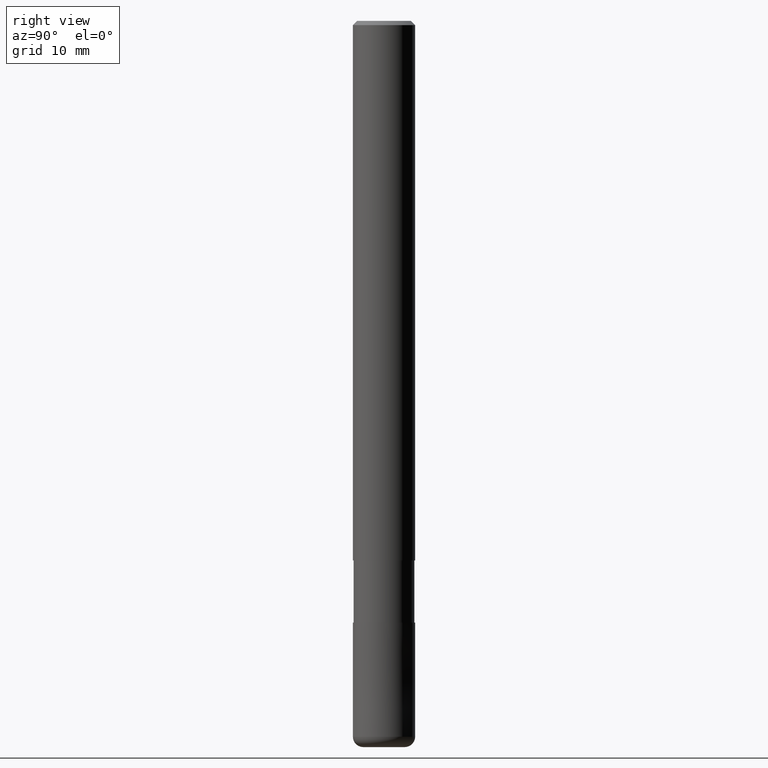
[diagram: clean part render]
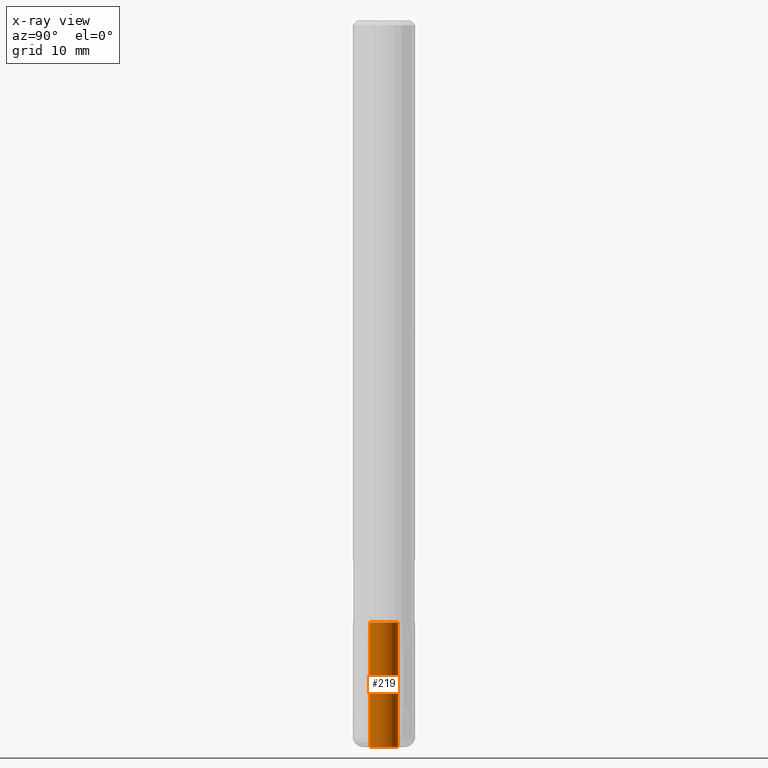
[diagram: x-ray — body ghosted, one internal face saturated and labeled with its STEP entity id]
A machine part, right view, then the same camera in x-ray: the body is ghosted and one INTERNAL B-rep face — a face not visible from any outside direction — is saturated and labeled: STEP entity #219.
In plain terms, the highlighted cylindrical surface (edge-blend (fillet) strip) has radius 1.35 mm, axis along (-0, -0, 1).
Its self-contained STEP definition (entity closure, byte-faithful):
#139=EDGE_CURVE('',#281,#269,#330,.T.);
#183=VERTEX_POINT('',#383);
#185=EDGE_CURVE('',#239,#183,#385,.T.);
#219=ADVANCED_FACE('',(#423),#424,.F.);
#221=EDGE_CURVE('',#269,#239,#426,.T.);
#239=VERTEX_POINT('',#446);
#245=EDGE_CURVE('',#281,#183,#452,.T.);
#269=VERTEX_POINT('',#479);
#281=VERTEX_POINT('',#492);
#330=LINE('',#540,#541);
#383=CARTESIAN_POINT('',(1.65321857766021E-016,-1.35,-58.0));
#385=LINE('',#609,#610);
#423=FACE_OUTER_BOUND('',#657,.T.);
#424=CYLINDRICAL_SURFACE('',#658,1.35);
#426=CIRCLE('',#661,1.35);
#446=CARTESIAN_POINT('',(1.65321857766021E-016,-1.35,-70.0));
#452=CIRCLE('',#694,1.35);
#479=CARTESIAN_POINT('',(0.0,1.35,-70.0));
#492=CARTESIAN_POINT('',(0.0,1.35,-58.0));
#540=CARTESIAN_POINT('',(-1.65321857766021E-016,1.35,-64.0));
#541=VECTOR('',#792,1.0);
#609=CARTESIAN_POINT('',(1.65321857766021E-016,-1.35,-64.0));
#610=VECTOR('',#870,1.0);
#657=EDGE_LOOP('',(#911,#912,#913,#914));
#658=AXIS2_PLACEMENT_3D('',#915,#916,#917);
#661=AXIS2_PLACEMENT_3D('',#918,#919,#920);
#694=AXIS2_PLACEMENT_3D('',#944,#945,#946);
#792=DIRECTION('',(0.0,-0.0,-1.0));
#870=DIRECTION('',(0.0,-0.0,1.0));
#911=ORIENTED_EDGE('',*,*,#139,.T.);
#912=ORIENTED_EDGE('',*,*,#221,.T.);
#913=ORIENTED_EDGE('',*,*,#185,.T.);
#914=ORIENTED_EDGE('',*,*,#245,.F.);
#915=CARTESIAN_POINT('',(0.0,0.0,-64.0));
#916=DIRECTION('',(-0.0,-0.0,1.0));
#917=DIRECTION('',(0.0,1.0,0.0));
#918=CARTESIAN_POINT('',(0.0,0.0,-70.0));
#919=DIRECTION('',(0.0,0.0,-1.0));
#920=DIRECTION('',(0.0,1.0,0.0));
#944=CARTESIAN_POINT('',(0.0,0.0,-58.0));
#945=DIRECTION('',(0.0,0.0,-1.0));
#946=DIRECTION('',(0.0,1.0,0.0));